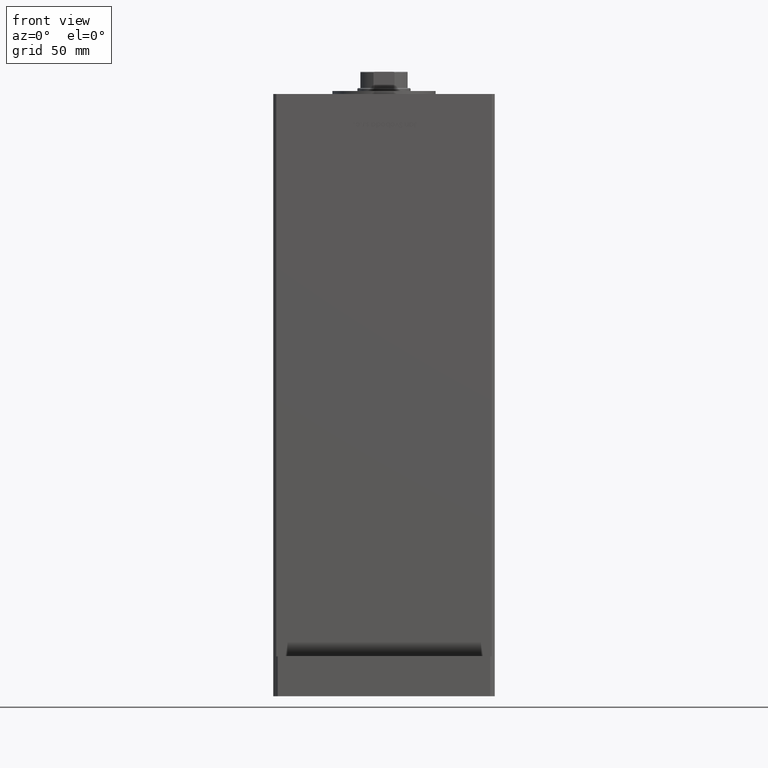
[diagram: clean part render]
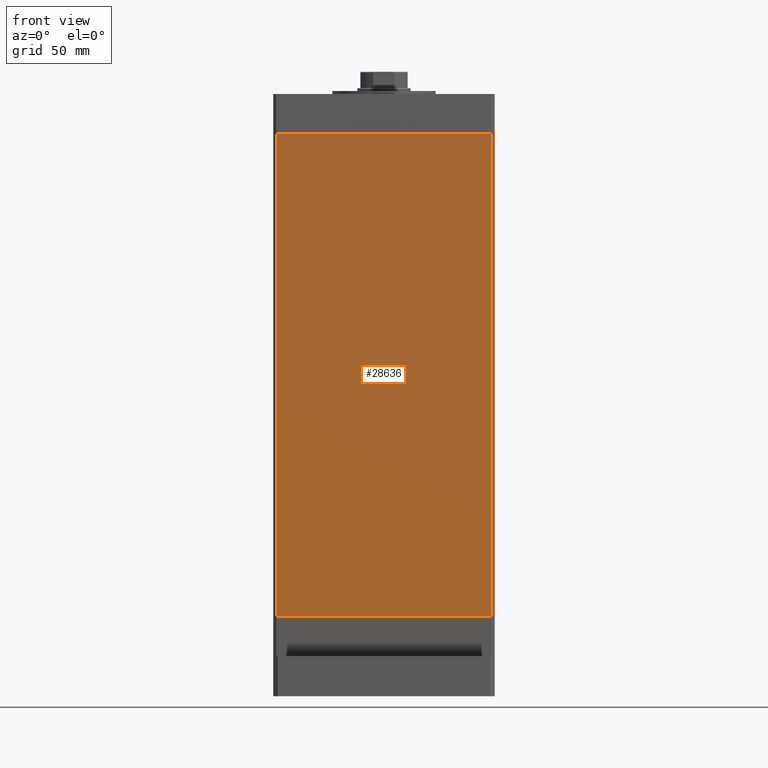
[diagram: same view with one face highlighted and labeled with its STEP entity id]
A machine part, front view. The second image highlights one B-rep face of the part: STEP entity #28636.
In plain terms, the highlighted planar face has unit normal (0, 1, 0).
Its self-contained STEP definition (entity closure, byte-faithful):
#1394 = FACE_OUTER_BOUND ( 'NONE', #33603, .T. ) ;
#3324 = VERTEX_POINT ( 'NONE', #22441 ) ;
#6017 = EDGE_CURVE ( 'NONE', #23051, #8920, #32588, .T. ) ;
#6540 = DIRECTION ( 'NONE',  ( 1.000000000000000000, 0.000000000000000000, 0.000000000000000000 ) ) ;
#8920 = VERTEX_POINT ( 'NONE', #17868 ) ;
#10831 = CARTESIAN_POINT ( 'NONE',  ( -72.99999999999998579, -62.50000000000000000, 327.0000000000000000 ) ) ;
#12877 = ORIENTED_EDGE ( 'NONE', *, *, #24246, .F. ) ;
#14687 = CARTESIAN_POINT ( 'NONE',  ( -72.99999999999998579, -62.50000000000000000, 0.000000000000000000 ) ) ;
#17868 = CARTESIAN_POINT ( 'NONE',  ( 72.99999999999998579, -62.50000000000000000, 327.0000000000000000 ) ) ;
#18612 = CARTESIAN_POINT ( 'NONE',  ( -72.99999999999998579, -62.50000000000000000, 0.000000000000000000 ) ) ;
#19163 = DIRECTION ( 'NONE',  ( 0.000000000000000000, 1.000000000000000000, 0.000000000000000000 ) ) ;
#19526 = ORIENTED_EDGE ( 'NONE', *, *, #6017, .F. ) ;
#20287 = VERTEX_POINT ( 'NONE', #18612 ) ;
#21919 = CARTESIAN_POINT ( 'NONE',  ( -72.99999999999998579, -62.50000000000000000, 327.0000000000000000 ) ) ;
#22441 = CARTESIAN_POINT ( 'NONE',  ( 72.99999999999998579, -62.50000000000000000, 0.000000000000000000 ) ) ;
#23051 = VERTEX_POINT ( 'NONE', #21919 ) ;
#24246 = EDGE_CURVE ( 'NONE', #8920, #3324, #26465, .T. ) ;
#25154 = VECTOR ( 'NONE', #35880, 1000.000000000000000 ) ;
#26465 = LINE ( 'NONE', #43957, #49467 ) ;
#28497 = EDGE_CURVE ( 'NONE', #23051, #20287, #40753, .T. ) ;
#28636 = ADVANCED_FACE ( 'NONE', ( #1394 ), #41226, .F. ) ;
#29430 = AXIS2_PLACEMENT_3D ( 'NONE', #32039, #19163, #36637 ) ;
#30078 = ORIENTED_EDGE ( 'NONE', *, *, #35257, .T. ) ;
#32039 = CARTESIAN_POINT ( 'NONE',  ( -72.99999999999998579, -62.50000000000000000, 327.0000000000000000 ) ) ;
#32588 = LINE ( 'NONE', #10831, #41989 ) ;
#33603 = EDGE_LOOP ( 'NONE', ( #30078, #12877, #19526, #49889 ) ) ;
#34021 = VECTOR ( 'NONE', #45067, 1000.000000000000000 ) ;
#35257 = EDGE_CURVE ( 'NONE', #20287, #3324, #40177, .T. ) ;
#35880 = DIRECTION ( 'NONE',  ( 1.000000000000000000, 0.000000000000000000, 0.000000000000000000 ) ) ;
#36637 = DIRECTION ( 'NONE',  ( 0.000000000000000000, -0.000000000000000000, 1.000000000000000000 ) ) ;
#40177 = LINE ( 'NONE', #14687, #25154 ) ;
#40187 = CARTESIAN_POINT ( 'NONE',  ( -72.99999999999998579, -62.50000000000000000, 327.0000000000000000 ) ) ;
#40753 = LINE ( 'NONE', #40187, #34021 ) ;
#41226 = PLANE ( 'NONE',  #29430 ) ;
#41989 = VECTOR ( 'NONE', #6540, 1000.000000000000000 ) ;
#43957 = CARTESIAN_POINT ( 'NONE',  ( 72.99999999999998579, -62.50000000000000000, 327.0000000000000000 ) ) ;
#45067 = DIRECTION ( 'NONE',  ( -0.000000000000000000, -0.000000000000000000, -1.000000000000000000 ) ) ;
#49467 = VECTOR ( 'NONE', #53128, 1000.000000000000000 ) ;
#49889 = ORIENTED_EDGE ( 'NONE', *, *, #28497, .T. ) ;
#53128 = DIRECTION ( 'NONE',  ( -0.000000000000000000, -0.000000000000000000, -1.000000000000000000 ) ) ;